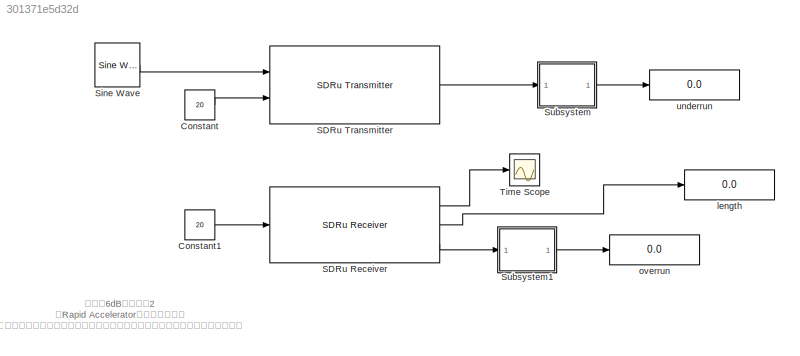
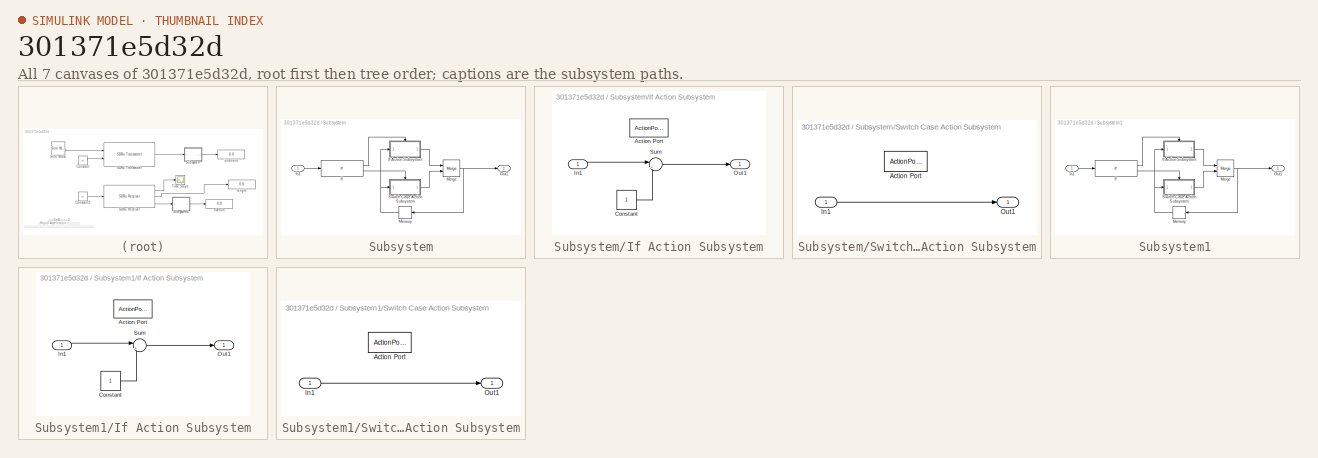
[diagram: thumbnail index - all 7 canvases of the model, root first then tree order]
MODEL slx_301371e5d32d
KIND model
CONFIG AbsTol = auto
CONFIG EnableMultiTasking = off
CONFIG FixedStep = auto
CONFIG MaxStep = auto
CONFIG MinStep = auto
CONFIG RelTol = 1e-3
CONFIG SampleTimeConstraint = Unconstrained
CONFIG Solver = FixedStepAuto
CONFIG SolverName = FixedStepAuto
CONFIG StartTime = 0.0
CONFIG StopTime = inf
BLOCK [Constant] Constant
  Value = 20
BLOCK [Constant] Constant1
  Value = 20
BLOCK [Reference] SDRu Receiver  REF=commsdrhw_v2/SDRu Receiver
  Ports = [1, 3]
  SourceBlock = commsdrhw_v2/SDRu Receiver
  SourceProductBaseCode = USRP
  SourceType = SDRu Receiver
BLOCK [Reference] SDRu Transmitter  REF=commsdrhw_v2/SDRu Transmitter
  Ports = [2, 1]
  SourceBlock = commsdrhw_v2/SDRu Transmitter
  SourceProductBaseCode = USRP
  SourceType = SDRu Transmitter
BLOCK [Reference] Sine Wave  REF=dspsrcs4/Sine Wave
  Ports = [0, 1]
  SourceBlock = dspsrcs4/Sine Wave
  SourceProductBaseCode = DS
  SourceType = Sine Wave
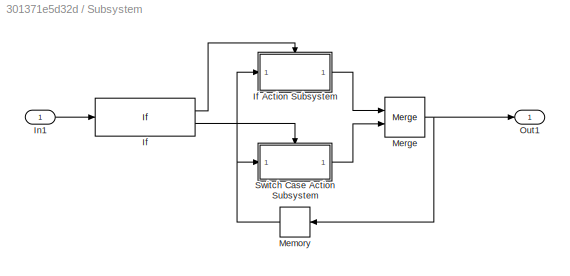
BLOCK [SubSystem] Subsystem
  Ports = [1, 1]
  RequestExecContextInheritance = off
BLOCK [If] Subsystem/If
  IfExpression = u1 ~= 0
  Ports = [1, 2]
BLOCK [SubSystem] Subsystem/If Action Subsystem
  Ports = [1, 1, 0, 0, 0, 0, 0, 1]
  RequestExecContextInheritance = off
  TreatAsAtomicUnit = on
BLOCK [ActionPort] Subsystem/If Action Subsystem/Action Port
  ActionPortLabel = if(u1 ~= 0)
BLOCK [Constant] Subsystem/If Action Subsystem/Constant
BLOCK [Inport] Subsystem/If Action Subsystem/In1
BLOCK [Outport] Subsystem/If Action Subsystem/Out1
  VectorParamsAs1DForOutWhenUnconnected = off
BLOCK [Sum] Subsystem/If Action Subsystem/Sum
  Inputs = |++
  Ports = [2, 1]
BLOCK [Inport] Subsystem/In1
BLOCK [Memory] Subsystem/Memory
  NameLocation = top
BLOCK [Merge] Subsystem/Merge
  Ports = [2, 1]
BLOCK [Outport] Subsystem/Out1
  VectorParamsAs1DForOutWhenUnconnected = off
BLOCK [SubSystem] Subsystem/Switch Case Action Subsystem
  Ports = [1, 1, 0, 0, 0, 0, 0, 1]
  RequestExecContextInheritance = off
  TreatAsAtomicUnit = on
BLOCK [ActionPort] Subsystem/Switch Case Action Subsystem/Action Port
  ActionPortLabel = else
BLOCK [Inport] Subsystem/Switch Case Action Subsystem/In1
BLOCK [Outport] Subsystem/Switch Case Action Subsystem/Out1
  VectorParamsAs1DForOutWhenUnconnected = off
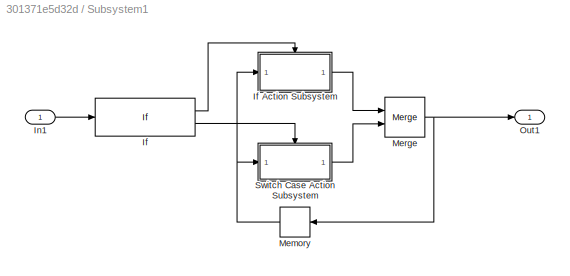
BLOCK [SubSystem] Subsystem1
  Ports = [1, 1]
  RequestExecContextInheritance = off
BLOCK [If] Subsystem1/If
  IfExpression = u1 ~= 0
  Ports = [1, 2]
BLOCK [SubSystem] Subsystem1/If Action Subsystem
  Ports = [1, 1, 0, 0, 0, 0, 0, 1]
  RequestExecContextInheritance = off
  TreatAsAtomicUnit = on
BLOCK [ActionPort] Subsystem1/If Action Subsystem/Action Port
  ActionPortLabel = if(u1 ~= 0)
BLOCK [Constant] Subsystem1/If Action Subsystem/Constant
BLOCK [Inport] Subsystem1/If Action Subsystem/In1
BLOCK [Outport] Subsystem1/If Action Subsystem/Out1
  VectorParamsAs1DForOutWhenUnconnected = off
BLOCK [Sum] Subsystem1/If Action Subsystem/Sum
  Inputs = |++
  Ports = [2, 1]
BLOCK [Inport] Subsystem1/In1
BLOCK [Memory] Subsystem1/Memory
  NameLocation = top
BLOCK [Merge] Subsystem1/Merge
  Ports = [2, 1]
BLOCK [Outport] Subsystem1/Out1
  VectorParamsAs1DForOutWhenUnconnected = off
BLOCK [SubSystem] Subsystem1/Switch Case Action Subsystem
  Ports = [1, 1, 0, 0, 0, 0, 0, 1]
  RequestExecContextInheritance = off
  TreatAsAtomicUnit = on
BLOCK [ActionPort] Subsystem1/Switch Case Action Subsystem/Action Port
  ActionPortLabel = else
BLOCK [Inport] Subsystem1/Switch Case Action Subsystem/In1
BLOCK [Outport] Subsystem1/Switch Case Action Subsystem/Out1
  VectorParamsAs1DForOutWhenUnconnected = off
BLOCK [Scope] Time Scope
  DefaultConfigurationName = spbscopes.TimeScopeBlockCfg
  Floating = off
  NumInputPorts = 1
  Ports = [1]
  ScopeSpecificationString = spbscopes.TimeScopeBlockCfg('CurrentConfiguration', extmgr.ConfigurationSet(extmgr.Configuration('Core','General UI',true),extmgr.Configuration('Core','Source UI',true),extmgr.Configuration('Sources','WiredSimulink',true),extmgr.Configuration('Visuals','Time Domain',true,'DisplayPropertyDefaults',struct('MinYLimReal','476.51937','MaxYLimReal','508.11015','YLabelReal','Amplitude','MinYLimMag','476....<+1429ch>
  UserDataPersistent = on
BLOCK [Display] length
  Decimation = 1
  Ports = [1]
BLOCK [Display] overrun
  Decimation = 1
  Ports = [1]
BLOCK [Display] underrun
  Decimation = 1
  Ports = [1]
ANNOTATION (root): 增益加6dB，幅值乘2 用Rapid Accelerator模式，不会丢数 此程序用来验证设备发送和接收好不好使，发送端口和接收端口使用同轴线直连
LINE Constant1:1 -> SDRu Receiver:1
LINE Constant:1 -> SDRu Transmitter:2
LINE SDRu Receiver:1 -> Time Scope:1
LINE SDRu Receiver:2 -> length:1
LINE SDRu Receiver:3 -> Subsystem1:1
LINE SDRu Transmitter:1 -> Subsystem:1
LINE Sine Wave:1 -> SDRu Transmitter:1
LINE Subsystem/If Action Subsystem/Constant:1 -> Subsystem/If Action Subsystem/Sum:2
LINE Subsystem/If Action Subsystem/In1:1 -> Subsystem/If Action Subsystem/Sum:1
LINE Subsystem/If Action Subsystem/Sum:1 -> Subsystem/If Action Subsystem/Out1:1
LINE Subsystem/If Action Subsystem:1 -> Subsystem/Merge:1
LINE Subsystem/If:1 -> Subsystem/If Action Subsystem:ifaction
LINE Subsystem/If:2 -> Subsystem/Switch Case Action Subsystem:ifaction
LINE Subsystem/In1:1 -> Subsystem/If:1
NET Subsystem/Memory:1 -> Subsystem/If Action Subsystem:1, Subsystem/Switch Case Action Subsystem:1
NET Subsystem/Merge:1 -> Subsystem/Memory:1, Subsystem/Out1:1
LINE Subsystem/Switch Case Action Subsystem/In1:1 -> Subsystem/Switch Case Action Subsystem/Out1:1
LINE Subsystem/Switch Case Action Subsystem:1 -> Subsystem/Merge:2
LINE Subsystem1/If Action Subsystem/Constant:1 -> Subsystem1/If Action Subsystem/Sum:2
LINE Subsystem1/If Action Subsystem/In1:1 -> Subsystem1/If Action Subsystem/Sum:1
LINE Subsystem1/If Action Subsystem/Sum:1 -> Subsystem1/If Action Subsystem/Out1:1
LINE Subsystem1/If Action Subsystem:1 -> Subsystem1/Merge:1
LINE Subsystem1/If:1 -> Subsystem1/If Action Subsystem:ifaction
LINE Subsystem1/If:2 -> Subsystem1/Switch Case Action Subsystem:ifaction
LINE Subsystem1/In1:1 -> Subsystem1/If:1
NET Subsystem1/Memory:1 -> Subsystem1/If Action Subsystem:1, Subsystem1/Switch Case Action Subsystem:1
NET Subsystem1/Merge:1 -> Subsystem1/Memory:1, Subsystem1/Out1:1
LINE Subsystem1/Switch Case Action Subsystem/In1:1 -> Subsystem1/Switch Case Action Subsystem/Out1:1
LINE Subsystem1/Switch Case Action Subsystem:1 -> Subsystem1/Merge:2
LINE Subsystem1:1 -> overrun:1
LINE Subsystem:1 -> underrun:1
note: NET lines group one-source signal fan-out (src -> all destinations, sorted); 1:1 wires keep LINE
